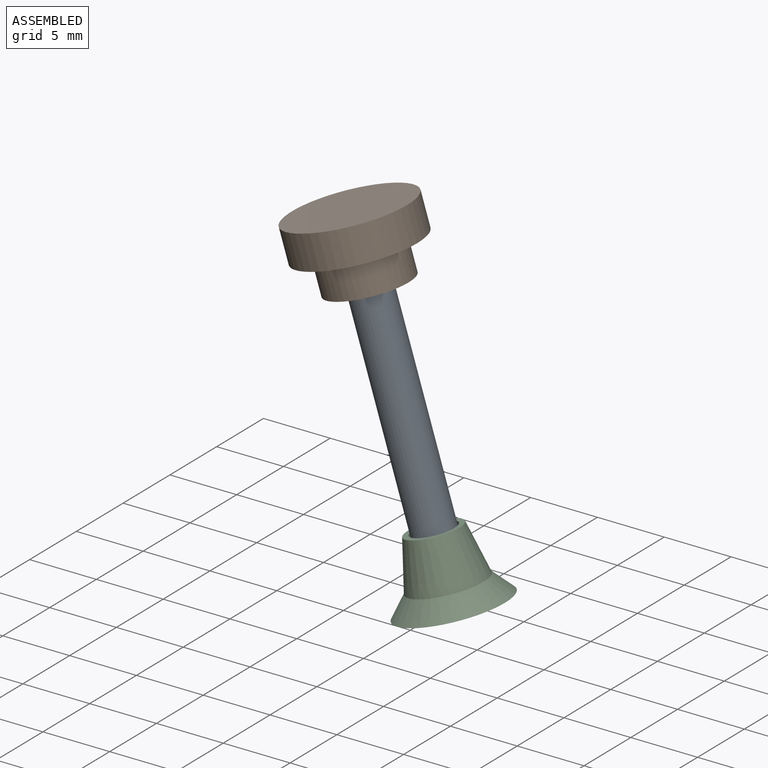
[diagram: assembled view]
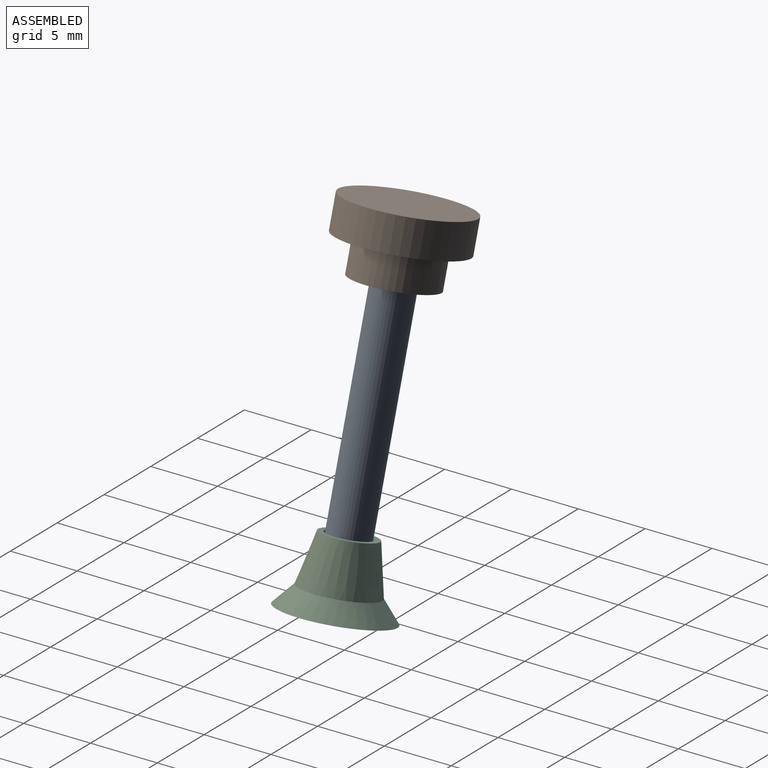
[diagram: assembled view, second angle]
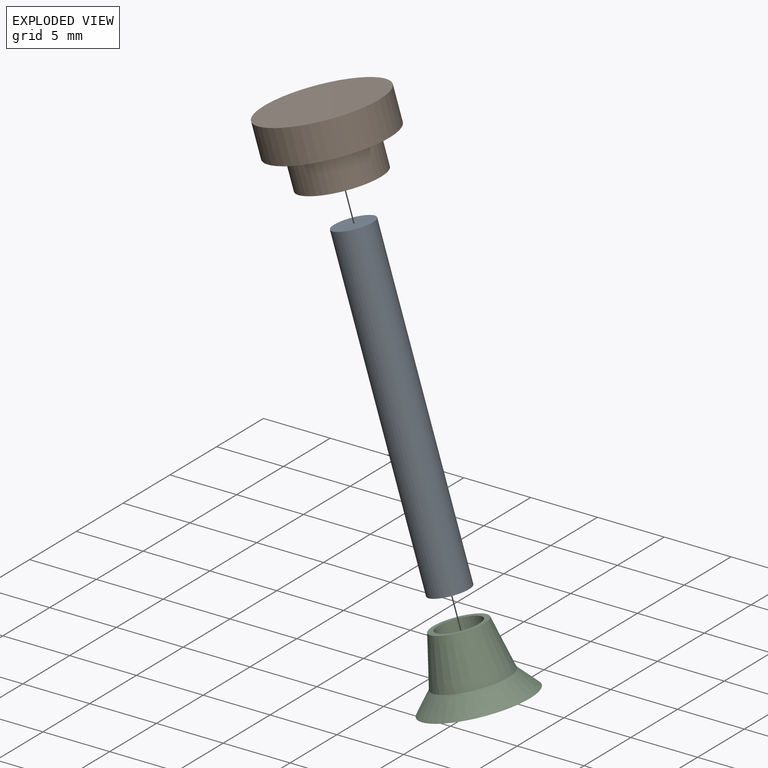
[diagram: exploded view]
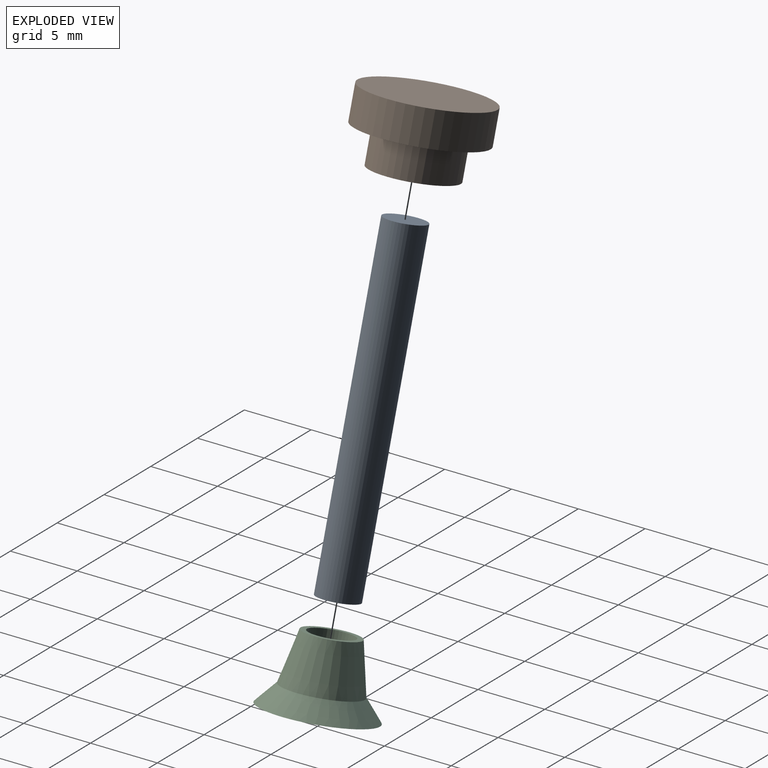
[diagram: exploded view, second angle]
ASSEMBLY  parts=3 mates=2
PART A: 3 faces, bbox 10.1x3x23.8 mm
  f0: plane 3x2.86mm, normal (0.3,0,-0.95), area 7.1mm2, adj f1
  f1: cylinder r=1.5mm len=23.79mm, axis (-0.3,0,0.95), area 226.2mm2, adj f0,f2
  f2: plane 3x2.86mm, normal (-0.3,0,0.95), area 7.1mm2, adj f1
PART B: 7 faces, bbox 9.3x9x7 mm
  f0: cylinder r=4.5mm len=9.34mm, axis (0.3,0,-0.95), area 70.7mm2, adj f1,f2
  f1: plane 9x8.59mm, normal (-0.3,0,0.95), area 63.6mm2, adj f0
  f2: plane 9x8.59mm, normal (0.3,0,-0.95), area 34.4mm2, adj f0,f4
  f3: plane 6.1x5.82mm, normal (0.3,0,-0.95), area 21.1mm2, adj f4,f5
  f4: cylinder r=3.05mm len=6.57mm, axis (0.3,0,-0.95), area 47.9mm2, adj f2,f3
  f5: cylinder r=1.6mm len=4.78mm, axis (0.3,0,-0.95), area 40.2mm2, adj f3,f6
  f6: plane 3.2x3.05mm, normal (0.3,0,-0.95), area 8mm2, adj f5
PART C: 6 faces, bbox 7.6x8x6.6 mm
  f0: plane 3.2x3.05mm, normal (-0.3,0,0.95), area 8mm2, adj f5
  f1: plane 8x7.63mm, normal (0.3,0,-0.95), area 50.3mm2, adj f2
  f2: cone r=4mm half-angle=40deg, axis (0.3,0,-0.95), area 40.1mm2, adj f1,f3
  f3: cone r=2.79mm half-angle=12.5deg, axis (0.3,0,-0.95), area 54.9mm2, adj f2,f4
  f4: plane 4x3.82mm, normal (-0.3,0,0.95), area 4.5mm2, adj f3,f5
  f5: cylinder r=1.6mm len=4.78mm, axis (-0.3,0,0.95), area 40.2mm2, adj f0,f4
PLACE A at identity
PLACE B at identity
PLACE C at identity fixed
MATE fastened B.f5 <-> A.f1  axis (0.3,0,-0.95) through (-12.95,6,79.71)mm
MATE fastened A.f1 <-> C.f2  axis (0.3,0,-0.95) through (-5.75,6,56.82)mm
